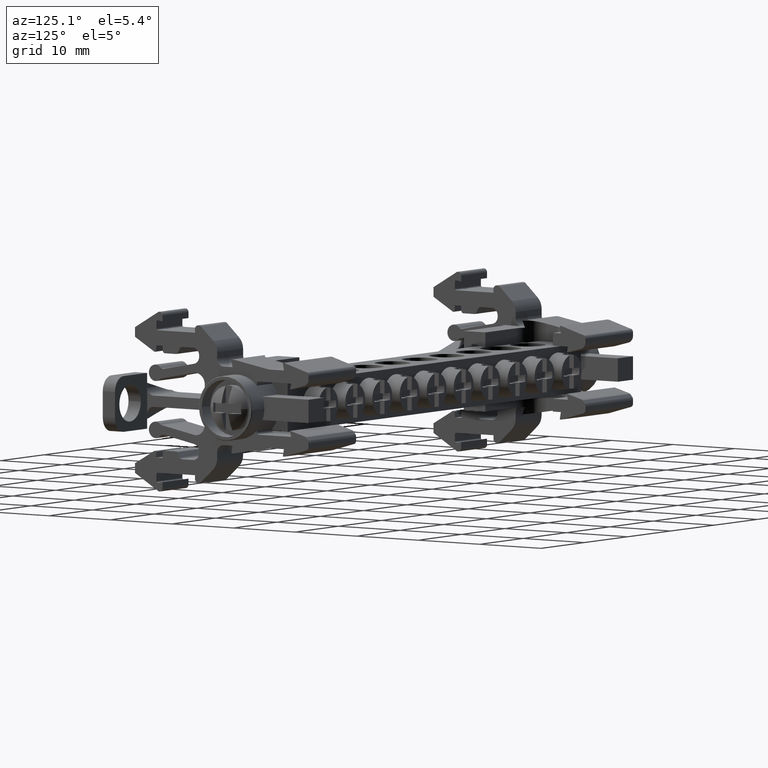
[diagram: clean part render]
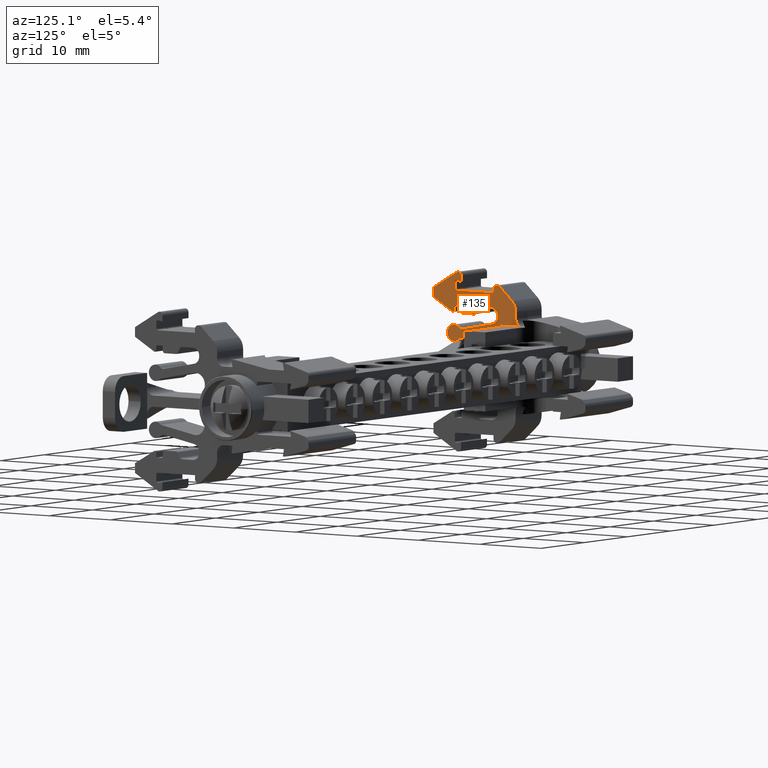
[diagram: same view with one face highlighted and labeled with its STEP entity id]
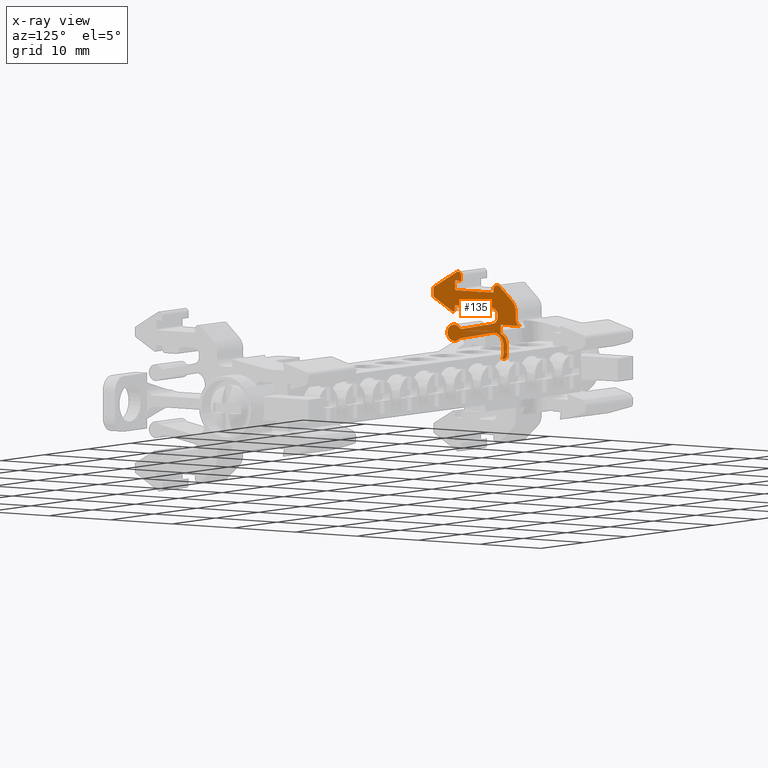
[diagram: x-ray of the same camera — body ghosted, the highlighted face saturated]
A machine part, auxiliary view. The second image highlights one B-rep face of the part: STEP entity #135.
The next image is the same camera in x-ray: the body ghosted, the highlighted face saturated — about 7% of this face is hidden behind the body in this view.
In plain terms, the highlighted planar face has unit normal (1, 0, 0).
Its self-contained STEP definition (entity closure, byte-faithful):
#135 = ADVANCED_FACE ( 'NONE', ( #17767 ), #17716, .T. ) ;
#1150 = CARTESIAN_POINT ( 'NONE',  ( -122.8216458143856300, -105.8321369110602500, 222.6335482511910300 ) ) ;
#1151 = CARTESIAN_POINT ( 'NONE',  ( -122.8216458143856500, -102.3123490521095500, 222.4835475022401300 ) ) ;
#1155 = CARTESIAN_POINT ( 'NONE',  ( -122.8216458143856300, -108.2558110941383700, 227.4835498842966500 ) ) ;
#1177 = CARTESIAN_POINT ( 'NONE',  ( -122.8216458143856300, -108.1922814932105600, 222.7574014648004400 ) ) ;
#1190 = CARTESIAN_POINT ( 'NONE',  ( -122.8216458143856500, -99.39286109378814200, 223.1026008950049400 ) ) ;
#1198 = CARTESIAN_POINT ( 'NONE',  ( -122.8216458143855800, -109.2558110941755100, 225.6915481006067000 ) ) ;
#1210 = CARTESIAN_POINT ( 'NONE',  ( -122.8216458143856300, -105.4857268588087600, 223.2335481108692400 ) ) ;
#1212 = CARTESIAN_POINT ( 'NONE',  ( -122.8216458143856300, -102.3365732325451100, 226.4995481262805300 ) ) ;
#1221 = CARTESIAN_POINT ( 'NONE',  ( -122.8216458143856300, -102.9868230936711600, 225.9995481546423500 ) ) ;
#1380 = CARTESIAN_POINT ( 'NONE',  ( -122.8216458143855800, -109.0763486557829400, 227.8672889009111200 ) ) ;
#1387 = CARTESIAN_POINT ( 'NONE',  ( -122.8216458143854800, -112.7399380817992400, 225.7074608894460800 ) ) ;
#1390 = CARTESIAN_POINT ( 'NONE',  ( -122.8216458143854800, -112.7399380817992200, 224.4266105503093600 ) ) ;
#1396 = CARTESIAN_POINT ( 'NONE',  ( -122.8216458143856300, -108.6349134515984200, 218.9832421137210500 ) ) ;
#1398 = CARTESIAN_POINT ( 'NONE',  ( -122.8216458143856500, -101.9990154256432100, 226.3684043144929200 ) ) ;
#1400 = CARTESIAN_POINT ( 'NONE',  ( -122.8216458143856600, -101.3928611025549300, 217.2335481259393600 ) ) ;
#1401 = CARTESIAN_POINT ( 'NONE',  ( -122.8216458143856300, -100.0426308077028500, 224.5780251455116700 ) ) ;
#1402 = CARTESIAN_POINT ( 'NONE',  ( -122.8216458143855500, -109.0561093426207300, 225.4915483486255100 ) ) ;
#1404 = CARTESIAN_POINT ( 'NONE',  ( -122.8216458143856500, -103.1533333604392800, 220.1164792170366700 ) ) ;
#1407 = CARTESIAN_POINT ( 'NONE',  ( -122.8216458143856500, -108.5640052566052000, 220.5315778921853400 ) ) ;
#1408 = CARTESIAN_POINT ( 'NONE',  ( -122.8216458143856500, -102.9868232935470300, 225.4915483486254300 ) ) ;
#1410 = CARTESIAN_POINT ( 'NONE',  ( -122.8216458143856300, -105.0529993498046200, 223.4835480448195400 ) ) ;
#1416 = CARTESIAN_POINT ( 'NONE',  ( -122.8216458143856300, -103.3123490521455400, 223.4835480448154500 ) ) ;
#1423 = CARTESIAN_POINT ( 'NONE',  ( -122.8216458143855600, -108.3833857851077100, 219.1075181731911200 ) ) ;
#1435 = CARTESIAN_POINT ( 'NONE',  ( -122.8216458143856500, -102.3928610938992000, 220.0534811498913300 ) ) ;
#1442 = CARTESIAN_POINT ( 'NONE',  ( -122.8216458143856600, -101.3928611025549300, 218.6392675874658700 ) ) ;
#1443 = CARTESIAN_POINT ( 'NONE',  ( -122.8216458143855600, -109.6166753369768400, 222.6233938249023100 ) ) ;
#1450 = CARTESIAN_POINT ( 'NONE',  ( -122.8216458143856300, -103.1387010397603300, 221.3375710191016300 ) ) ;
#1454 = CARTESIAN_POINT ( 'NONE',  ( -122.8216458143856300, -107.8934230783930100, 222.4835481261335100 ) ) ;
#1471 = CARTESIAN_POINT ( 'NONE',  ( -122.8216458143856300, -106.0919445073640300, 222.4835481990460600 ) ) ;
#1514 = CARTESIAN_POINT ( 'NONE',  ( -122.8216458143856300, -108.1065984147255300, 220.3748351888165200 ) ) ;
#1889 = CARTESIAN_POINT ( 'NONE',  ( -122.8216458143856300, -109.3174363904954600, 222.7791677660495700 ) ) ;
#1900 = CARTESIAN_POINT ( 'NONE',  ( -122.8216458143856300, -102.4868236223981600, 226.4995479673919200 ) ) ;
#1909 = CARTESIAN_POINT ( 'NONE',  ( -122.8216458143856500, -102.3123492269897100, 222.3223779566562500 ) ) ;
#2197 = AXIS2_PLACEMENT_3D ( 'NONE', #17763, #17778, #17730 ) ;
#2397 = DIRECTION ( 'NONE',  ( -0.0000000000000000000, 0.08715553781146480300, -0.9961947160213179300 ) ) ;
#2400 = CARTESIAN_POINT ( 'NONE',  ( -122.8216458143856300, -105.1337112323945300, 187.7977005792868700 ) ) ;
#2425 = LINE ( 'NONE', #2400, #14073 ) ;
#2439 = DIRECTION ( 'NONE',  ( -1.000000000000000000, -1.103043697976142200E-014, -2.308216128895730200E-015 ) ) ;
#2458 = CARTESIAN_POINT ( 'NONE',  ( -122.8216458143856300, -102.4868230936527300, 225.9995479673739300 ) ) ;
#2461 = DIRECTION ( 'NONE',  ( 0.0000000000000000000, 1.000000000000000000, 0.0000000000000000000 ) ) ;
#2462 = LINE ( 'NONE', #2481, #14022 ) ;
#2467 = DIRECTION ( 'NONE',  ( -0.0000000000000000000, 2.018709680339304800E-007, -0.9999999999999796800 ) ) ;
#2481 = CARTESIAN_POINT ( 'NONE',  ( -122.8216458143856300, -108.2558031788411300, 188.2738637982418800 ) ) ;
#2488 = DIRECTION ( 'NONE',  ( -0.0000000000000000000, 0.4999999694212598500, 0.8660254214390817900 ) ) ;
#2510 = CARTESIAN_POINT ( 'NONE',  ( -122.8216458143856500, -102.3123861719909200, 188.2738682141393800 ) ) ;
#2514 = CARTESIAN_POINT ( 'NONE',  ( -122.8216458143856300, -119.2113083318521500, 199.4601416975699000 ) ) ;
#2515 = DIRECTION ( 'NONE',  ( -0.0000000000000000000, -1.085069551946554400E-006, -0.9999999999994112500 ) ) ;
#2525 = LINE ( 'NONE', #2514, #14027 ) ;
#2532 = LINE ( 'NONE', #2510, #14055 ) ;
#2541 = CARTESIAN_POINT ( 'NONE',  ( -122.8216458143856500, -99.39284391280492100, 188.2738657458673700 ) ) ;
#2558 = LINE ( 'NONE', #2541, #14062 ) ;
#2581 = DIRECTION ( 'NONE',  ( -0.0000000000000000000, 4.932990846792050800E-007, -0.9999999999998783200 ) ) ;
#2781 = EDGE_CURVE ( 'NONE', #4646, #4628, #13189, .T. ) ;
#2802 = EDGE_CURVE ( 'NONE', #4613, #4628, #18333, .T. ) ;
#2839 = EDGE_CURVE ( 'NONE', #4626, #4569, #13165, .T. ) ;
#2997 = EDGE_CURVE ( 'NONE', #4540, #4520, #17795, .T. ) ;
#3420 = LINE ( 'NONE', #3461, #14009 ) ;
#3460 = CARTESIAN_POINT ( 'NONE',  ( -122.8216458143856300, -112.2402023855741200, 189.3717679783433700 ) ) ;
#3461 = CARTESIAN_POINT ( 'NONE',  ( -122.8216458143857300, -103.1584416647076000, 221.2795482728011800 ) ) ;
#3482 = LINE ( 'NONE', #3460, #13982 ) ;
#3496 = DIRECTION ( 'NONE',  ( 0.0000000000000000000, -1.000000000000000000, 1.383348239789809800E-013 ) ) ;
#3511 = CARTESIAN_POINT ( 'NONE',  ( -122.8216458143856300, -109.2558110941755600, 188.2738655272053700 ) ) ;
#3512 = CARTESIAN_POINT ( 'NONE',  ( -122.8216458143856300, -99.83614850068190100, 226.4995507704568600 ) ) ;
#3515 = LINE ( 'NONE', #3511, #14013 ) ;
#3524 = DIRECTION ( 'NONE',  ( -0.0000000000000000000, -0.9999999999994407800, -1.057490948686546300E-006 ) ) ;
#3532 = LINE ( 'NONE', #3512, #13968 ) ;
#3535 = DIRECTION ( 'NONE',  ( 4.863477797153988500E-046, -4.409143360392221000E-032, -1.000000000000000000 ) ) ;
#3539 = DIRECTION ( 'NONE',  ( -0.0000000000000000000, 0.08715566094578627900, 0.9961947052484786400 ) ) ;
#3652 = VERTEX_POINT ( 'NONE', #16348 ) ;
#3796 = VERTEX_POINT ( 'NONE', #16460 ) ;
#3808 = VERTEX_POINT ( 'NONE', #16501 ) ;
#3903 = VERTEX_POINT ( 'NONE', #16591 ) ;
#3930 = VERTEX_POINT ( 'NONE', #16632 ) ;
#3960 = VERTEX_POINT ( 'NONE', #16623 ) ;
#4520 = VERTEX_POINT ( 'NONE', #6220 ) ;
#4540 = VERTEX_POINT ( 'NONE', #6257 ) ;
#4569 = VERTEX_POINT ( 'NONE', #6251 ) ;
#4613 = VERTEX_POINT ( 'NONE', #6215 ) ;
#4626 = VERTEX_POINT ( 'NONE', #6291 ) ;
#4628 = VERTEX_POINT ( 'NONE', #6338 ) ;
#4646 = VERTEX_POINT ( 'NONE', #6295 ) ;
#5601 = CIRCLE ( 'NONE', #5604, 0.2000000000073193200 ) ;
#5604 = AXIS2_PLACEMENT_3D ( 'NONE', #12013, #11999, #12016 ) ;
#5651 = CIRCLE ( 'NONE', #5689, 0.5000000000186105600 ) ;
#5689 = AXIS2_PLACEMENT_3D ( 'NONE', #11995, #12020, #12023 ) ;
#5805 = AXIS2_PLACEMENT_3D ( 'NONE', #11696, #11698, #11697 ) ;
#5819 = VECTOR ( 'NONE', #11673, 1000.000000000000000 ) ;
#5835 = CIRCLE ( 'NONE', #5805, 0.5000000000183885100 ) ;
#6215 = CARTESIAN_POINT ( 'NONE',  ( -122.8216458143856300, -108.2558109364940700, 226.7026335723960200 ) ) ;
#6220 = CARTESIAN_POINT ( 'NONE',  ( -122.8216458143856300, -109.2558111595749600, 223.4835480448119300 ) ) ;
#6251 = CARTESIAN_POINT ( 'NONE',  ( -122.8216458143856800, -99.39286066508498200, 222.2335477815993300 ) ) ;
#6257 = CARTESIAN_POINT ( 'NONE',  ( -122.8216458143856300, -108.2558109364941100, 223.4835480448119300 ) ) ;
#6291 = CARTESIAN_POINT ( 'NONE',  ( -122.8216458143857900, -98.69266773623677100, 221.2795482728005000 ) ) ;
#6295 = CARTESIAN_POINT ( 'NONE',  ( -122.8216458143856300, -109.2558110941755600, 226.6406094055543600 ) ) ;
#6338 = CARTESIAN_POINT ( 'NONE',  ( -122.8216458143856300, -109.0210815233686500, 226.8375709675790700 ) ) ;
#7628 = CARTESIAN_POINT ( 'NONE',  ( -122.8216458143858600, -101.4117033491439500, 218.9147908863113800 ) ) ;
#8296 = EDGE_LOOP ( 'NONE', ( #8825, #8870, #8838, #8848, #8813, #8834, #8808, #8820, #8836, #8852, #8857, #8818, #8854, #8837, #8821, #8810, #8860, #8823, #8824, #8833, #8855, #8842, #8867, #8814, #8826, #8590, #8617, #8620, #8574, #8613, #8567, #8594, #8597, #8589, #8580, #8575, #8624, #8600, #8572, #8616, #8598, #8579, #8603, #8581, #8615, #8576 ) ) ;
#8567 = ORIENTED_EDGE ( 'NONE', *, *, #15995, .T. ) ;
#8572 = ORIENTED_EDGE ( 'NONE', *, *, #15996, .T. ) ;
#8574 = ORIENTED_EDGE ( 'NONE', *, *, #15990, .T. ) ;
#8575 = ORIENTED_EDGE ( 'NONE', *, *, #15987, .T. ) ;
#8576 = ORIENTED_EDGE ( 'NONE', *, *, #18265, .F. ) ;
#8579 = ORIENTED_EDGE ( 'NONE', *, *, #2839, .T. ) ;
#8580 = ORIENTED_EDGE ( 'NONE', *, *, #17111, .F. ) ;
#8581 = ORIENTED_EDGE ( 'NONE', *, *, #17184, .F. ) ;
#8589 = ORIENTED_EDGE ( 'NONE', *, *, #17163, .T. ) ;
#8590 = ORIENTED_EDGE ( 'NONE', *, *, #17127, .T. ) ;
#8594 = ORIENTED_EDGE ( 'NONE', *, *, #17175, .T. ) ;
#8597 = ORIENTED_EDGE ( 'NONE', *, *, #15979, .T. ) ;
#8598 = ORIENTED_EDGE ( 'NONE', *, *, #10893, .F. ) ;
#8600 = ORIENTED_EDGE ( 'NONE', *, *, #10264, .T. ) ;
#8603 = ORIENTED_EDGE ( 'NONE', *, *, #11602, .F. ) ;
#8613 = ORIENTED_EDGE ( 'NONE', *, *, #17214, .T. ) ;
#8615 = ORIENTED_EDGE ( 'NONE', *, *, #15981, .T. ) ;
#8616 = ORIENTED_EDGE ( 'NONE', *, *, #10157, .T. ) ;
#8617 = ORIENTED_EDGE ( 'NONE', *, *, #16030, .T. ) ;
#8620 = ORIENTED_EDGE ( 'NONE', *, *, #17186, .T. ) ;
#8624 = ORIENTED_EDGE ( 'NONE', *, *, #10268, .T. ) ;
#8808 = ORIENTED_EDGE ( 'NONE', *, *, #2781, .T. ) ;
#8810 = ORIENTED_EDGE ( 'NONE', *, *, #2997, .F. ) ;
#8813 = ORIENTED_EDGE ( 'NONE', *, *, #18246, .T. ) ;
#8814 = ORIENTED_EDGE ( 'NONE', *, *, #17119, .T. ) ;
#8818 = ORIENTED_EDGE ( 'NONE', *, *, #17221, .T. ) ;
#8820 = ORIENTED_EDGE ( 'NONE', *, *, #2802, .F. ) ;
#8821 = ORIENTED_EDGE ( 'NONE', *, *, #11526, .T. ) ;
#8823 = ORIENTED_EDGE ( 'NONE', *, *, #17145, .F. ) ;
#8824 = ORIENTED_EDGE ( 'NONE', *, *, #16014, .T. ) ;
#8825 = ORIENTED_EDGE ( 'NONE', *, *, #11535, .T. ) ;
#8826 = ORIENTED_EDGE ( 'NONE', *, *, #11584, .T. ) ;
#8833 = ORIENTED_EDGE ( 'NONE', *, *, #17143, .F. ) ;
#8834 = ORIENTED_EDGE ( 'NONE', *, *, #11534, .F. ) ;
#8836 = ORIENTED_EDGE ( 'NONE', *, *, #11573, .F. ) ;
#8837 = ORIENTED_EDGE ( 'NONE', *, *, #17180, .F. ) ;
#8838 = ORIENTED_EDGE ( 'NONE', *, *, #17154, .T. ) ;
#8842 = ORIENTED_EDGE ( 'NONE', *, *, #17147, .T. ) ;
#8848 = ORIENTED_EDGE ( 'NONE', *, *, #16011, .T. ) ;
#8852 = ORIENTED_EDGE ( 'NONE', *, *, #17238, .F. ) ;
#8854 = ORIENTED_EDGE ( 'NONE', *, *, #15930, .T. ) ;
#8855 = ORIENTED_EDGE ( 'NONE', *, *, #11587, .T. ) ;
#8857 = ORIENTED_EDGE ( 'NONE', *, *, #15967, .T. ) ;
#8860 = ORIENTED_EDGE ( 'NONE', *, *, #11561, .T. ) ;
#8867 = ORIENTED_EDGE ( 'NONE', *, *, #15945, .T. ) ;
#8870 = ORIENTED_EDGE ( 'NONE', *, *, #11578, .F. ) ;
#9314 = DIRECTION ( 'NONE',  ( -2.359837107700700200E-015, -5.201590689945690600E-029, 1.000000000000000000 ) ) ;
#9321 = CARTESIAN_POINT ( 'NONE',  ( -122.8216458143856500, -101.3079706742565200, 217.2475482728004300 ) ) ;
#9323 = LINE ( 'NONE', #9324, #13519 ) ;
#9324 = CARTESIAN_POINT ( 'NONE',  ( -122.8216458143857000, -100.8039706742568000, 227.9935498338483900 ) ) ;
#9328 = DIRECTION ( 'NONE',  ( 0.0000000000000000000, -1.000000000000000000, 0.0000000000000000000 ) ) ;
#9333 = DIRECTION ( 'NONE',  ( 1.000000000000000000, 1.104054362957800100E-014, 2.359837107699180100E-015 ) ) ;
#9395 = CARTESIAN_POINT ( 'NONE',  ( -122.8216458143858600, -102.0755775018525400, 219.9000868224384000 ) ) ;
#9995 = CARTESIAN_POINT ( 'NONE',  ( -122.8216458143858600, -102.0043592654039300, 219.8506391757058500 ) ) ;
#10050 = DIRECTION ( 'NONE',  ( -1.924032260545635300E-014, 0.8660253871031052800, -0.5000000288929158400 ) ) ;
#10063 = CARTESIAN_POINT ( 'NONE',  ( -122.8216458143854300, -112.7399380817992200, 224.4266105503093900 ) ) ;
#10080 = LINE ( 'NONE', #10063, #23680 ) ;
#10105 = CARTESIAN_POINT ( 'NONE',  ( -122.8216458143856200, -104.1738188390632200, 223.4835480448195400 ) ) ;
#10107 = DIRECTION ( 'NONE',  ( -2.204215991422325000E-014, 1.000000000000000000, 0.0000000000000000000 ) ) ;
#10121 = CARTESIAN_POINT ( 'NONE',  ( -122.8216458143858600, -101.8124523077259200, 219.6929009916858600 ) ) ;
#10127 = LINE ( 'NONE', #10105, #23162 ) ;
#10157 = EDGE_CURVE ( 'NONE', #3808, #3930, #22090, .T. ) ;
#10212 = DIRECTION ( 'NONE',  ( 1.957903537810702100E-014, -0.8614430961689165700, -0.5078541050960511100 ) ) ;
#10224 = LINE ( 'NONE', #10252, #23150 ) ;
#10252 = CARTESIAN_POINT ( 'NONE',  ( -122.8216458143855200, -109.0763486557828700, 227.8672889009111200 ) ) ;
#10261 = CARTESIAN_POINT ( 'NONE',  ( -122.8216458143858600, -102.3075559082789300, 220.0233212122804200 ) ) ;
#10264 = EDGE_CURVE ( 'NONE', #3960, #3796, #9323, .T. ) ;
#10268 = EDGE_CURVE ( 'NONE', #3903, #3960, #13536, .T. ) ;
#10279 = CARTESIAN_POINT ( 'NONE',  ( -122.8216458143858600, -102.2273217071771100, 219.9863662987088700 ) ) ;
#10295 = CARTESIAN_POINT ( 'NONE',  ( -122.8216458143856500, -102.3928610938992000, 220.0534811498913300 ) ) ;
#10893 = EDGE_CURVE ( 'NONE', #4626, #3930, #3420, .T. ) ;
#11526 = EDGE_CURVE ( 'NONE', #20235, #4520, #3482, .T. ) ;
#11534 = EDGE_CURVE ( 'NONE', #4646, #20283, #3515, .T. ) ;
#11535 = EDGE_CURVE ( 'NONE', #20275, #20241, #3532, .T. ) ;
#11561 = EDGE_CURVE ( 'NONE', #4540, #20285, #2425, .T. ) ;
#11573 = EDGE_CURVE ( 'NONE', #20262, #4613, #2462, .T. ) ;
#11578 = EDGE_CURVE ( 'NONE', #20310, #20241, #14068, .T. ) ;
#11584 = EDGE_CURVE ( 'NONE', #20256, #20246, #2532, .T. ) ;
#11587 = EDGE_CURVE ( 'NONE', #20254, #20266, #2525, .T. ) ;
#11602 = EDGE_CURVE ( 'NONE', #20276, #4569, #2558, .T. ) ;
#11614 = DIRECTION ( 'NONE',  ( 0.0000000000000000000, 1.000000000000000000, 0.0000000000000000000 ) ) ;
#11622 = DIRECTION ( 'NONE',  ( -1.000000000000000000, -1.103043697976142200E-014, -2.308216128895730200E-015 ) ) ;
#11624 = DIRECTION ( 'NONE',  ( -1.387778780730474800E-014, 1.000000000000000000, 0.0000000000000000000 ) ) ;
#11627 = CARTESIAN_POINT ( 'NONE',  ( -122.8216458143856200, -101.3928610938615300, 223.1026004017058700 ) ) ;
#11629 = CARTESIAN_POINT ( 'NONE',  ( -122.8216458143856300, -108.1934225035605300, 220.8672390653409000 ) ) ;
#11643 = DIRECTION ( 'NONE',  ( -1.000000000000000000, -1.103043697976142200E-014, -2.308216128895730200E-015 ) ) ;
#11663 = DIRECTION ( 'NONE',  ( 0.0000000000000000000, 1.000000000000000000, -2.220446049169206300E-013 ) ) ;
#11666 = LINE ( 'NONE', #11685, #5819 ) ;
#11673 = DIRECTION ( 'NONE',  ( 4.863477797153988500E-046, -4.409143360392221000E-032, -1.000000000000000000 ) ) ;
#11682 = CARTESIAN_POINT ( 'NONE',  ( -122.8216458143856300, -108.2965616962779200, 218.6151142966658700 ) ) ;
#11685 = CARTESIAN_POINT ( 'NONE',  ( -122.8216458143855800, -112.7399380817991500, 188.2738655272053700 ) ) ;
#11696 = CARTESIAN_POINT ( 'NONE',  ( -122.8216458143856300, -108.7558110941567100, 227.4835498338289000 ) ) ;
#11697 = DIRECTION ( 'NONE',  ( 0.0000000000000000000, 1.000000000000000000, -5.551115122921629300E-014 ) ) ;
#11698 = DIRECTION ( 'NONE',  ( -1.000000000000000000, -1.103043697976142200E-014, -2.308216128895730200E-015 ) ) ;
#11699 = DIRECTION ( 'NONE',  ( -1.000000000000000000, -1.103043697976142200E-014, -2.308216128895730200E-015 ) ) ;
#11995 = CARTESIAN_POINT ( 'NONE',  ( -122.8216458143856300, -102.3365729946927300, 225.9995481262624300 ) ) ;
#11999 = DIRECTION ( 'NONE',  ( -1.000000000000000000, -1.103043697976142200E-014, -2.308216128895730200E-015 ) ) ;
#12013 = CARTESIAN_POINT ( 'NONE',  ( -122.8216458143855800, -109.0558110941681300, 225.6915481262524800 ) ) ;
#12016 = DIRECTION ( 'NONE',  ( 0.0000000000000000000, 1.000000000000000000, 0.0000000000000000000 ) ) ;
#12020 = DIRECTION ( 'NONE',  ( -1.000000000000000000, -1.103043697976142200E-014, -2.308216128895730200E-015 ) ) ;
#12023 = DIRECTION ( 'NONE',  ( 0.0000000000000000000, 1.000000000000000000, 5.551115122919164300E-014 ) ) ;
#12449 = CARTESIAN_POINT ( 'NONE',  ( -122.8216458143856500, -101.7925087245511800, 216.7435482728003800 ) ) ;
#12489 = CARTESIAN_POINT ( 'NONE',  ( -122.8216458143856300, -103.3123490521455200, 222.4835480447749500 ) ) ;
#12492 = CARTESIAN_POINT ( 'NONE',  ( -122.8216458143856800, -101.7083898858523700, 216.7670391061390900 ) ) ;
#12493 = CARTESIAN_POINT ( 'NONE',  ( -122.8216458143856800, -101.7485255284899400, 216.7525223401491400 ) ) ;
#12494 = CARTESIAN_POINT ( 'NONE',  ( -122.8216458143856800, -101.5568791070419200, 216.8579513456669200 ) ) ;
#12495 = CARTESIAN_POINT ( 'NONE',  ( -122.8216458143856800, -101.4030787011483500, 217.1168820511034000 ) ) ;
#12496 = CARTESIAN_POINT ( 'NONE',  ( -122.8216458143856800, -101.6091548831459200, 216.8159424020175000 ) ) ;
#12502 = DIRECTION ( 'NONE',  ( -1.000000000000000000, -1.103043697976142200E-014, -2.308216128895730200E-015 ) ) ;
#12505 = CARTESIAN_POINT ( 'NONE',  ( -122.8216458143856800, -101.4438133476693300, 217.0058336405174900 ) ) ;
#12508 = CARTESIAN_POINT ( 'NONE',  ( -122.8216458143856600, -101.3928611025549300, 217.2335481259393600 ) ) ;
#12511 = CARTESIAN_POINT ( 'NONE',  ( -122.8216458143856800, -101.3928610938623400, 217.1754503251068800 ) ) ;
#12512 = CARTESIAN_POINT ( 'NONE',  ( -122.8216458143856800, -101.4743160217549400, 216.9528759694464400 ) ) ;
#12515 = DIRECTION ( 'NONE',  ( -1.000000000000000000, -1.103043697976142200E-014, -2.308216128895730200E-015 ) ) ;
#12524 = CARTESIAN_POINT ( 'NONE',  ( -122.8216458143856200, -103.3123492270255200, 222.3223787704584100 ) ) ;
#12525 = DIRECTION ( 'NONE',  ( -1.387778780730445800E-014, 1.000000000000000000, 0.0000000000000000000 ) ) ;
#12526 = DIRECTION ( 'NONE',  ( -1.387778780730850200E-014, 1.000000000000000000, 0.0000000000000000000 ) ) ;
#12530 = CARTESIAN_POINT ( 'NONE',  ( -122.8216458143856300, -106.0919445134351200, 222.7835482837068900 ) ) ;
#12531 = DIRECTION ( 'NONE',  ( 0.0000000000000000000, 1.000000000000000000, 0.0000000000000000000 ) ) ;
#12532 = LINE ( 'NONE', #12549, #23676 ) ;
#12537 = CARTESIAN_POINT ( 'NONE',  ( -122.8216458143856500, -101.3928611112473100, 188.2738655272053700 ) ) ;
#12541 = DIRECTION ( 'NONE',  ( -1.000000000000000000, -1.103043697976142200E-014, -2.308216128895730200E-015 ) ) ;
#12542 = DIRECTION ( 'NONE',  ( -1.000000000000000000, -1.103043697976142200E-014, -2.308216128895730200E-015 ) ) ;
#12549 = CARTESIAN_POINT ( 'NONE',  ( -122.8216458143856300, -102.9868453587973400, 188.2738673867228800 ) ) ;
#12554 = DIRECTION ( 'NONE',  ( 0.0000000000000000000, 1.000000000000000000, 0.0000000000000000000 ) ) ;
#12555 = DIRECTION ( 'NONE',  ( 0.0000000000000000000, 1.000000000000000000, -5.551115122921783300E-014 ) ) ;
#12558 = CARTESIAN_POINT ( 'NONE',  ( -122.8216458143856300, -107.8934230783929300, 222.7835481261449200 ) ) ;
#12559 = CARTESIAN_POINT ( 'NONE',  ( -122.8216458143856300, -105.0527141480733200, 222.9835481261494000 ) ) ;
#12565 = DIRECTION ( 'NONE',  ( -0.0000000000000000000, -5.901848743007850600E-007, -0.9999999999998258100 ) ) ;
#12566 = DIRECTION ( 'NONE',  ( -1.000000000000000000, -1.103043697976142200E-014, -2.308216128895730200E-015 ) ) ;
#12571 = LINE ( 'NONE', #12537, #23632 ) ;
#12575 = DIRECTION ( 'NONE',  ( -1.000000000000000000, -1.103043697976142200E-014, -2.308216128895730200E-015 ) ) ;
#12589 = CARTESIAN_POINT ( 'NONE',  ( -122.8216458143856500, -102.8928610939175300, 218.6392675874658700 ) ) ;
#12603 = DIRECTION ( 'NONE',  ( -9.251858538201516900E-015, 1.000000000000000000, -3.700743415280606800E-014 ) ) ;
#12605 = CARTESIAN_POINT ( 'NONE',  ( -122.8216458143856300, -109.5166753311945300, 222.7965989023293800 ) ) ;
#12609 = DIRECTION ( 'NONE',  ( -1.000000000000000000, -1.103043697976142200E-014, -2.308216128895730200E-015 ) ) ;
#12610 = DIRECTION ( 'NONE',  ( 0.0000000000000000000, 1.000000000000000000, 0.0000000000000000000 ) ) ;
#12611 = DIRECTION ( 'NONE',  ( 3.215631517886581600E-043, -2.915234930208660300E-029, -1.000000000000000000 ) ) ;
#13147 = AXIS2_PLACEMENT_3D ( 'NONE', #18312, #18453, #18363 ) ;
#13165 = CIRCLE ( 'NONE', #13183, 1.000000000036832500 ) ;
#13183 = AXIS2_PLACEMENT_3D ( 'NONE', #18687, #18695, #18680 ) ;
#13189 = CIRCLE ( 'NONE', #13147, 0.2000000000074858600 ) ;
#13195 = VECTOR ( 'NONE', #18553, 1000.000000000000100 ) ;
#13235 = VECTOR ( 'NONE', #18148, 1000.000000000000000 ) ;
#13486 = VECTOR ( 'NONE', #22105, 1000.000000000000000 ) ;
#13519 = VECTOR ( 'NONE', #9314, 1000.000000000000000 ) ;
#13525 = AXIS2_PLACEMENT_3D ( 'NONE', #9321, #9333, #9328 ) ;
#13536 = CIRCLE ( 'NONE', #13525, 0.5040000000000044400 ) ;
#13968 = VECTOR ( 'NONE', #3524, 1000.000000000000100 ) ;
#13982 = VECTOR ( 'NONE', #3539, 1000.000000000000000 ) ;
#14009 = VECTOR ( 'NONE', #3496, 1000.000000000000000 ) ;
#14013 = VECTOR ( 'NONE', #3535, 1000.000000000000000 ) ;
#14022 = VECTOR ( 'NONE', #2467, 1000.000000000000000 ) ;
#14027 = VECTOR ( 'NONE', #2488, 1000.000000000000000 ) ;
#14055 = VECTOR ( 'NONE', #2515, 1000.000000000000100 ) ;
#14062 = VECTOR ( 'NONE', #2581, 1000.000000000000000 ) ;
#14068 = CIRCLE ( 'NONE', #14069, 0.5000000000183885100 ) ;
#14069 = AXIS2_PLACEMENT_3D ( 'NONE', #2458, #2439, #2461 ) ;
#14073 = VECTOR ( 'NONE', #2397, 1000.000000000000000 ) ;
#14585 = CARTESIAN_POINT ( 'NONE',  ( -122.8216458143858600, -101.4886356525247200, 219.1850626615134300 ) ) ;
#14601 = CARTESIAN_POINT ( 'NONE',  ( -122.8216458143858600, -101.7081697813879200, 219.5713917902118900 ) ) ;
#14680 = CARTESIAN_POINT ( 'NONE',  ( -122.8216458143858600, -101.5475021542565300, 219.3192369682489000 ) ) ;
#15930 = EDGE_CURVE ( 'NONE', #20426, #20516, #10080, .T. ) ;
#15945 = EDGE_CURVE ( 'NONE', #20489, #20479, #10127, .T. ) ;
#15967 = EDGE_CURVE ( 'NONE', #20434, #20417, #10224, .T. ) ;
#15979 = EDGE_CURVE ( 'NONE', #20505, #20470, #23068, .T. ) ;
#15981 = EDGE_CURVE ( 'NONE', #20475, #20472, #21726, .T. ) ;
#15987 = EDGE_CURVE ( 'NONE', #3652, #3903, #21778, .T. ) ;
#15990 = EDGE_CURVE ( 'NONE', #20494, #20474, #23206, .T. ) ;
#15995 = EDGE_CURVE ( 'NONE', #20482, #20461, #21840, .T. ) ;
#15996 = EDGE_CURVE ( 'NONE', #3796, #3808, #23203, .T. ) ;
#16011 = EDGE_CURVE ( 'NONE', #20447, #20476, #21862, .T. ) ;
#16014 = EDGE_CURVE ( 'NONE', #20480, #20520, #21947, .T. ) ;
#16030 = EDGE_CURVE ( 'NONE', #20512, #20521, #22067, .T. ) ;
#16348 = CARTESIAN_POINT ( 'NONE',  ( -122.8216458143856500, -101.7925087245511800, 216.7435482728003800 ) ) ;
#16460 = CARTESIAN_POINT ( 'NONE',  ( -122.8216458143858300, -100.8039706742565300, 218.6645135719736900 ) ) ;
#16501 = CARTESIAN_POINT ( 'NONE',  ( -122.8216458143857300, -101.8119706742559900, 220.0900408428458900 ) ) ;
#16591 = CARTESIAN_POINT ( 'NONE',  ( -122.8216458143856600, -101.3079706742565800, 216.7435482728004100 ) ) ;
#16623 = CARTESIAN_POINT ( 'NONE',  ( -122.8216458143856600, -100.8039706742568000, 217.2475482728004000 ) ) ;
#16632 = CARTESIAN_POINT ( 'NONE',  ( -122.8216458143856800, -101.8119706742558200, 221.2795482728009800 ) ) ;
#17111 = EDGE_CURVE ( 'NONE', #3652, #20471, #22975, .T. ) ;
#17119 = EDGE_CURVE ( 'NONE', #20479, #20256, #23677, .T. ) ;
#17127 = EDGE_CURVE ( 'NONE', #20246, #20512, #23622, .T. ) ;
#17143 = EDGE_CURVE ( 'NONE', #20254, #20520, #23659, .T. ) ;
#17145 = EDGE_CURVE ( 'NONE', #20480, #20285, #23648, .T. ) ;
#17147 = EDGE_CURVE ( 'NONE', #20266, #20489, #23620, .T. ) ;
#17154 = EDGE_CURVE ( 'NONE', #20310, #20447, #12532, .T. ) ;
#17163 = EDGE_CURVE ( 'NONE', #20470, #20471, #12571, .T. ) ;
#17175 = EDGE_CURVE ( 'NONE', #20461, #20505, #23625, .T. ) ;
#17180 = EDGE_CURVE ( 'NONE', #20235, #20516, #23636, .T. ) ;
#17184 = EDGE_CURVE ( 'NONE', #20475, #20276, #23645, .T. ) ;
#17186 = EDGE_CURVE ( 'NONE', #20521, #20494, #23663, .T. ) ;
#17214 = EDGE_CURVE ( 'NONE', #20474, #20482, #23340, .T. ) ;
#17221 = EDGE_CURVE ( 'NONE', #20417, #20426, #11666, .T. ) ;
#17238 = EDGE_CURVE ( 'NONE', #20434, #20262, #5835, .T. ) ;
#17716 = PLANE ( 'NONE',  #2197 ) ;
#17730 = DIRECTION ( 'NONE',  ( -2.204215991422325000E-014, 1.000000000000000000, 0.0000000000000000000 ) ) ;
#17763 = CARTESIAN_POINT ( 'NONE',  ( -122.8216458143856300, -104.1738188390632200, 227.9935498338483900 ) ) ;
#17767 = FACE_OUTER_BOUND ( 'NONE', #8296, .T. ) ;
#17778 = DIRECTION ( 'NONE',  ( 1.000000000000000000, 2.204215991422325000E-014, 2.359837107700700200E-015 ) ) ;
#17795 = LINE ( 'NONE', #17837, #13235 ) ;
#17837 = CARTESIAN_POINT ( 'NONE',  ( -122.8216458143856300, -99.69110807736579700, 223.4835480448119000 ) ) ;
#18148 = DIRECTION ( 'NONE',  ( 7.456988637091183100E-044, -1.000000000000000000, -3.230628425016104900E-029 ) ) ;
#18246 = EDGE_CURVE ( 'NONE', #20476, #20283, #5601, .T. ) ;
#18265 = EDGE_CURVE ( 'NONE', #20275, #20472, #5651, .T. ) ;
#18312 = CARTESIAN_POINT ( 'NONE',  ( -122.8216458143856300, -109.0558110941681300, 226.6406094055543600 ) ) ;
#18333 = LINE ( 'NONE', #18340, #13195 ) ;
#18340 = CARTESIAN_POINT ( 'NONE',  ( -122.8216458143856300, -93.37767830220120400, 224.0792262478609600 ) ) ;
#18363 = DIRECTION ( 'NONE',  ( 0.0000000000000000000, 1.000000000000000000, 0.0000000000000000000 ) ) ;
#18453 = DIRECTION ( 'NONE',  ( -1.000000000000000000, -1.103043697976142200E-014, -2.308216128895730200E-015 ) ) ;
#18553 = DIRECTION ( 'NONE',  ( -0.0000000000000000000, -0.9848078535450401900, 0.1736476075159419700 ) ) ;
#18680 = DIRECTION ( 'NONE',  ( -1.387778780730330300E-014, 1.000000000000000000, 0.0000000000000000000 ) ) ;
#18687 = CARTESIAN_POINT ( 'NONE',  ( -122.8216458143857300, -98.39286066504843100, 222.2335481261228800 ) ) ;
#18695 = DIRECTION ( 'NONE',  ( -1.000000000000000000, -1.103043697976142200E-014, -2.308216128895730200E-015 ) ) ;
#20235 = VERTEX_POINT ( 'NONE', #1889 ) ;
#20241 = VERTEX_POINT ( 'NONE', #1900 ) ;
#20246 = VERTEX_POINT ( 'NONE', #1909 ) ;
#20254 = VERTEX_POINT ( 'NONE', #1150 ) ;
#20256 = VERTEX_POINT ( 'NONE', #1151 ) ;
#20262 = VERTEX_POINT ( 'NONE', #1155 ) ;
#20266 = VERTEX_POINT ( 'NONE', #1210 ) ;
#20275 = VERTEX_POINT ( 'NONE', #1212 ) ;
#20276 = VERTEX_POINT ( 'NONE', #1190 ) ;
#20283 = VERTEX_POINT ( 'NONE', #1198 ) ;
#20285 = VERTEX_POINT ( 'NONE', #1177 ) ;
#20310 = VERTEX_POINT ( 'NONE', #1221 ) ;
#20417 = VERTEX_POINT ( 'NONE', #1387 ) ;
#20426 = VERTEX_POINT ( 'NONE', #1390 ) ;
#20434 = VERTEX_POINT ( 'NONE', #1380 ) ;
#20447 = VERTEX_POINT ( 'NONE', #1408 ) ;
#20461 = VERTEX_POINT ( 'NONE', #1404 ) ;
#20470 = VERTEX_POINT ( 'NONE', #1442 ) ;
#20471 = VERTEX_POINT ( 'NONE', #1400 ) ;
#20472 = VERTEX_POINT ( 'NONE', #1398 ) ;
#20474 = VERTEX_POINT ( 'NONE', #1396 ) ;
#20475 = VERTEX_POINT ( 'NONE', #1401 ) ;
#20476 = VERTEX_POINT ( 'NONE', #1402 ) ;
#20479 = VERTEX_POINT ( 'NONE', #1416 ) ;
#20480 = VERTEX_POINT ( 'NONE', #1454 ) ;
#20482 = VERTEX_POINT ( 'NONE', #1423 ) ;
#20489 = VERTEX_POINT ( 'NONE', #1410 ) ;
#20494 = VERTEX_POINT ( 'NONE', #1407 ) ;
#20505 = VERTEX_POINT ( 'NONE', #1435 ) ;
#20512 = VERTEX_POINT ( 'NONE', #1450 ) ;
#20516 = VERTEX_POINT ( 'NONE', #1443 ) ;
#20520 = VERTEX_POINT ( 'NONE', #1471 ) ;
#20521 = VERTEX_POINT ( 'NONE', #1514 ) ;
#21724 = DIRECTION ( 'NONE',  ( -2.204215991422325000E-014, 1.000000000000000000, 0.0000000000000000000 ) ) ;
#21726 = LINE ( 'NONE', #21780, #23141 ) ;
#21727 = CARTESIAN_POINT ( 'NONE',  ( -122.8216458143856000, -104.1738188390632200, 216.7435482728004100 ) ) ;
#21748 = CARTESIAN_POINT ( 'NONE',  ( -122.8216458143856300, -109.3792873133035200, 219.7931233112429100 ) ) ;
#21749 = DIRECTION ( 'NONE',  ( 1.000000000000000000, 1.103043697976142200E-014, 2.308216128895730200E-015 ) ) ;
#21750 = DIRECTION ( 'NONE',  ( -1.261617073391244300E-014, 1.000000000000000000, 0.0000000000000000000 ) ) ;
#21776 = CARTESIAN_POINT ( 'NONE',  ( -122.8216458143858600, -101.3928610938625600, 218.7770359800538800 ) ) ;
#21778 = LINE ( 'NONE', #21727, #23220 ) ;
#21780 = CARTESIAN_POINT ( 'NONE',  ( -122.8216458143857200, -100.0426307977417800, 224.5780251363958100 ) ) ;
#21782 = CARTESIAN_POINT ( 'NONE',  ( -122.8216458143856600, -101.3928611025549300, 218.6392675874658700 ) ) ;
#21784 = DIRECTION ( 'NONE',  ( 1.569908443974072000E-014, -0.7377123764336759300, 0.6751151380739276500 ) ) ;
#21795 = DIRECTION ( 'NONE',  ( 1.000000000000000000, 1.104054362957800100E-014, 2.359837107699180100E-015 ) ) ;
#21799 = CARTESIAN_POINT ( 'NONE',  ( -122.8216458143855000, -108.3833857851098200, 219.1075181731907300 ) ) ;
#21804 = DIRECTION ( 'NONE',  ( 9.178431089824295600E-015, -1.000000000000000000, 0.0000000000000000000 ) ) ;
#21806 = CARTESIAN_POINT ( 'NONE',  ( -122.8216458143858200, -102.3159706742562500, 218.6645135719738800 ) ) ;
#21824 = DIRECTION ( 'NONE',  ( -2.605430368890259000E-014, 0.9818955014187116200, 0.1894233995410722900 ) ) ;
#21840 = LINE ( 'NONE', #21799, #23221 ) ;
#21858 = DIRECTION ( 'NONE',  ( -2.204215991422325000E-014, 1.000000000000000000, 0.0000000000000000000 ) ) ;
#21862 = LINE ( 'NONE', #21940, #23192 ) ;
#21940 = CARTESIAN_POINT ( 'NONE',  ( -122.8216458143856300, -104.1738188390632200, 225.4915483486254000 ) ) ;
#21947 = LINE ( 'NONE', #21952, #23215 ) ;
#21952 = CARTESIAN_POINT ( 'NONE',  ( -122.8216458143856200, -104.1738188390632200, 222.4835481261336300 ) ) ;
#21954 = DIRECTION ( 'NONE',  ( 2.204215991422325000E-014, -1.000000000000000000, -0.0000000000000000000 ) ) ;
#22067 = LINE ( 'NONE', #22074, #23205 ) ;
#22069 = DIRECTION ( 'NONE',  ( 2.193976781552969900E-014, -0.9817353137201096900, -0.1902518693597456700 ) ) ;
#22074 = CARTESIAN_POINT ( 'NONE',  ( -122.8216458143856500, -103.1387010397635900, 221.3375710191009200 ) ) ;
#22090 = LINE ( 'NONE', #22094, #13486 ) ;
#22094 = CARTESIAN_POINT ( 'NONE',  ( -122.8216458143856200, -101.8119706742558000, 221.3734927763173900 ) ) ;
#22105 = DIRECTION ( 'NONE',  ( -2.359837107700710100E-015, 1.387778780781406000E-013, 1.000000000000000000 ) ) ;
#22975 = B_SPLINE_CURVE_WITH_KNOTS ( 'NONE', 3,
 ( #12449, #12493, #12492, #12496, #12494, #12512, #12505, #12495, #12511, #12508 ),
 .UNSPECIFIED., .F., .F.,
 ( 4, 2, 2, 2, 4 ),
 ( 2.775557561562891000E-017, 0.0001109069612250486400, 0.0003011213956451427400, 0.0004913358300652368900, 0.0006815502644853308300 ),
 .UNSPECIFIED. ) ;
#23068 = B_SPLINE_CURVE_WITH_KNOTS ( 'NONE', 3,
 ( #10295, #10261, #10279, #9395, #9995, #10121, #14601, #14680, #14585, #7628, #21776, #21782 ),
 .UNSPECIFIED., .F., .F.,
 ( 4, 2, 2, 2, 2, 4 ),
 ( 0.0000000000000000000, 0.0002294974859127869500, 0.0004589949718255739000, 0.0009179899436511478100, 0.001376984915476721700, 0.001835979887302295600 ),
 .UNSPECIFIED. ) ;
#23141 = VECTOR ( 'NONE', #21784, 999.9999999999998900 ) ;
#23150 = VECTOR ( 'NONE', #10212, 999.9999999999998900 ) ;
#23162 = VECTOR ( 'NONE', #10107, 1000.000000000000000 ) ;
#23180 = AXIS2_PLACEMENT_3D ( 'NONE', #21806, #21795, #21804 ) ;
#23186 = AXIS2_PLACEMENT_3D ( 'NONE', #21748, #21749, #21750 ) ;
#23192 = VECTOR ( 'NONE', #21954, 1000.000000000000000 ) ;
#23203 = CIRCLE ( 'NONE', #23180, 1.512000000000013300 ) ;
#23205 = VECTOR ( 'NONE', #22069, 1000.000000000000100 ) ;
#23206 = CIRCLE ( 'NONE', #23186, 1.100000000040485300 ) ;
#23215 = VECTOR ( 'NONE', #21858, 1000.000000000000000 ) ;
#23220 = VECTOR ( 'NONE', #21724, 1000.000000000000000 ) ;
#23221 = VECTOR ( 'NONE', #21824, 1000.000000000000100 ) ;
#23340 = CIRCLE ( 'NONE', #23434, 0.5000000000182636100 ) ;
#23434 = AXIS2_PLACEMENT_3D ( 'NONE', #11682, #11699, #11663 ) ;
#23616 = AXIS2_PLACEMENT_3D ( 'NONE', #12559, #12541, #12555 ) ;
#23619 = AXIS2_PLACEMENT_3D ( 'NONE', #12530, #12542, #12531 ) ;
#23620 = CIRCLE ( 'NONE', #23616, 0.5000000000183746400 ) ;
#23622 = CIRCLE ( 'NONE', #23654, 1.000000000036457900 ) ;
#23625 = CIRCLE ( 'NONE', #23667, 1.500000000055359700 ) ;
#23632 = VECTOR ( 'NONE', #12611, 1000.000000000000000 ) ;
#23634 = AXIS2_PLACEMENT_3D ( 'NONE', #12558, #12566, #12554 ) ;
#23636 = CIRCLE ( 'NONE', #23662, 0.2000000000073332000 ) ;
#23645 = CIRCLE ( 'NONE', #23669, 2.000000000073456800 ) ;
#23648 = CIRCLE ( 'NONE', #23634, 0.3000000000112634800 ) ;
#23654 = AXIS2_PLACEMENT_3D ( 'NONE', #12524, #12502, #12526 ) ;
#23655 = AXIS2_PLACEMENT_3D ( 'NONE', #12489, #12515, #12525 ) ;
#23659 = CIRCLE ( 'NONE', #23619, 0.3000000000110691900 ) ;
#23662 = AXIS2_PLACEMENT_3D ( 'NONE', #12605, #12609, #12610 ) ;
#23663 = CIRCLE ( 'NONE', #23673, 0.5000000000183468800 ) ;
#23667 = AXIS2_PLACEMENT_3D ( 'NONE', #12589, #12575, #12603 ) ;
#23669 = AXIS2_PLACEMENT_3D ( 'NONE', #11627, #11622, #11624 ) ;
#23673 = AXIS2_PLACEMENT_3D ( 'NONE', #11629, #11643, #11614 ) ;
#23676 = VECTOR ( 'NONE', #12565, 1000.000000000000100 ) ;
#23677 = CIRCLE ( 'NONE', #23655, 1.000000000036749300 ) ;
#23680 = VECTOR ( 'NONE', #10050, 1000.000000000000100 ) ;